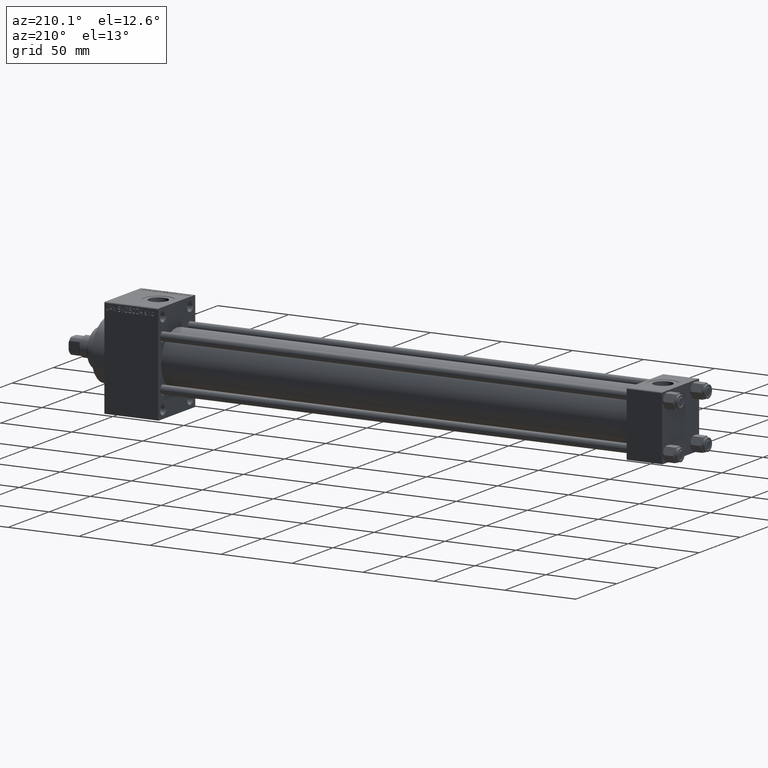
[diagram: clean part render]
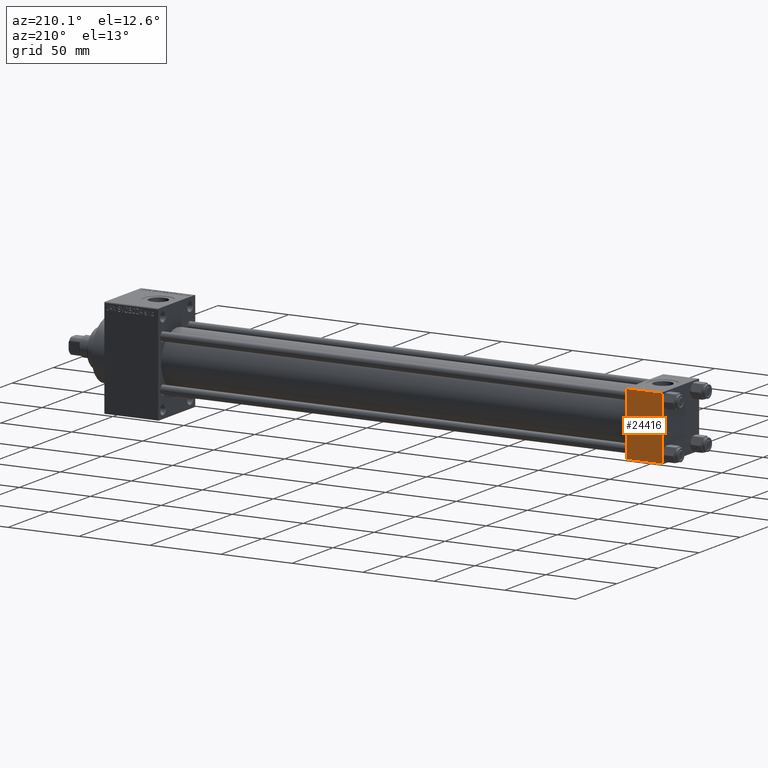
[diagram: same view with one face highlighted and labeled with its STEP entity id]
A machine part, auxiliary view. The second image highlights one B-rep face of the part: STEP entity #24416.
In plain terms, the highlighted planar face has unit normal (0, 1, 0).
Its self-contained STEP definition (entity closure, byte-faithful):
#1777 = ORIENTED_EDGE ( 'NONE', *, *, #38751, .T. ) ;
#1897 = VECTOR ( 'NONE', #41081, 1000.000000000000000 ) ;
#3909 = CARTESIAN_POINT ( 'NONE',  ( 0.000000000000000000, 22.50000000000000000, 21.99999999999999645 ) ) ;
#4697 = CARTESIAN_POINT ( 'NONE',  ( 0.000000000000000000, 22.50000000000000000, -21.99999999999996803 ) ) ;
#5417 = CARTESIAN_POINT ( 'NONE',  ( 25.00000000000000000, 22.50000000000000000, -21.99999999999996803 ) ) ;
#5879 = VERTEX_POINT ( 'NONE', #4697 ) ;
#7694 = AXIS2_PLACEMENT_3D ( 'NONE', #29931, #29226, #37341 ) ;
#10036 = LINE ( 'NONE', #28489, #28112 ) ;
#13640 = ORIENTED_EDGE ( 'NONE', *, *, #19792, .T. ) ;
#15751 = VERTEX_POINT ( 'NONE', #3909 ) ;
#19288 = CARTESIAN_POINT ( 'NONE',  ( 25.00000000000000000, 22.50000000000000000, -21.99999999999998224 ) ) ;
#19792 = EDGE_CURVE ( 'NONE', #26696, #43056, #10036, .T. ) ;
#20993 = VECTOR ( 'NONE', #33426, 1000.000000000000000 ) ;
#21123 = DIRECTION ( 'NONE',  ( 0.000000000000000000, 0.000000000000000000, -1.000000000000000000 ) ) ;
#24416 = ADVANCED_FACE ( 'NONE', ( #36863 ), #40219, .T. ) ;
#26679 = EDGE_LOOP ( 'NONE', ( #13640, #1777, #44699, #46403 ) ) ;
#26696 = VERTEX_POINT ( 'NONE', #30639 ) ;
#28112 = VECTOR ( 'NONE', #28948, 1000.000000000000000 ) ;
#28489 = CARTESIAN_POINT ( 'NONE',  ( 25.00000000000000000, 22.50000000000000000, 22.50000000000000355 ) ) ;
#28948 = DIRECTION ( 'NONE',  ( 0.000000000000000000, 0.000000000000000000, -1.000000000000000000 ) ) ;
#29226 = DIRECTION ( 'NONE',  ( -0.000000000000000000, 1.000000000000000000, 0.000000000000000000 ) ) ;
#29931 = CARTESIAN_POINT ( 'NONE',  ( 25.00000000000000000, 22.50000000000000000, 22.50000000000000355 ) ) ;
#30639 = CARTESIAN_POINT ( 'NONE',  ( 25.00000000000000000, 22.50000000000000000, 21.99999999999999645 ) ) ;
#33426 = DIRECTION ( 'NONE',  ( -1.000000000000000000, 0.000000000000000000, 0.000000000000000000 ) ) ;
#33673 = LINE ( 'NONE', #36780, #1897 ) ;
#36780 = CARTESIAN_POINT ( 'NONE',  ( 25.00000000000000000, 22.50000000000000000, 21.99999999999999645 ) ) ;
#36863 = FACE_OUTER_BOUND ( 'NONE', #26679, .T. ) ;
#37341 = DIRECTION ( 'NONE',  ( 0.000000000000000000, -0.000000000000000000, 1.000000000000000000 ) ) ;
#37652 = EDGE_CURVE ( 'NONE', #15751, #26696, #33673, .T. ) ;
#38751 = EDGE_CURVE ( 'NONE', #43056, #5879, #44645, .T. ) ;
#39428 = VECTOR ( 'NONE', #21123, 1000.000000000000000 ) ;
#39527 = LINE ( 'NONE', #43117, #39428 ) ;
#40219 = PLANE ( 'NONE',  #7694 ) ;
#41081 = DIRECTION ( 'NONE',  ( 1.000000000000000000, 0.000000000000000000, 0.000000000000000000 ) ) ;
#42624 = EDGE_CURVE ( 'NONE', #15751, #5879, #39527, .T. ) ;
#43056 = VERTEX_POINT ( 'NONE', #5417 ) ;
#43117 = CARTESIAN_POINT ( 'NONE',  ( 0.000000000000000000, 22.50000000000000000, 22.50000000000000355 ) ) ;
#44645 = LINE ( 'NONE', #19288, #20993 ) ;
#44699 = ORIENTED_EDGE ( 'NONE', *, *, #42624, .F. ) ;
#46403 = ORIENTED_EDGE ( 'NONE', *, *, #37652, .T. ) ;